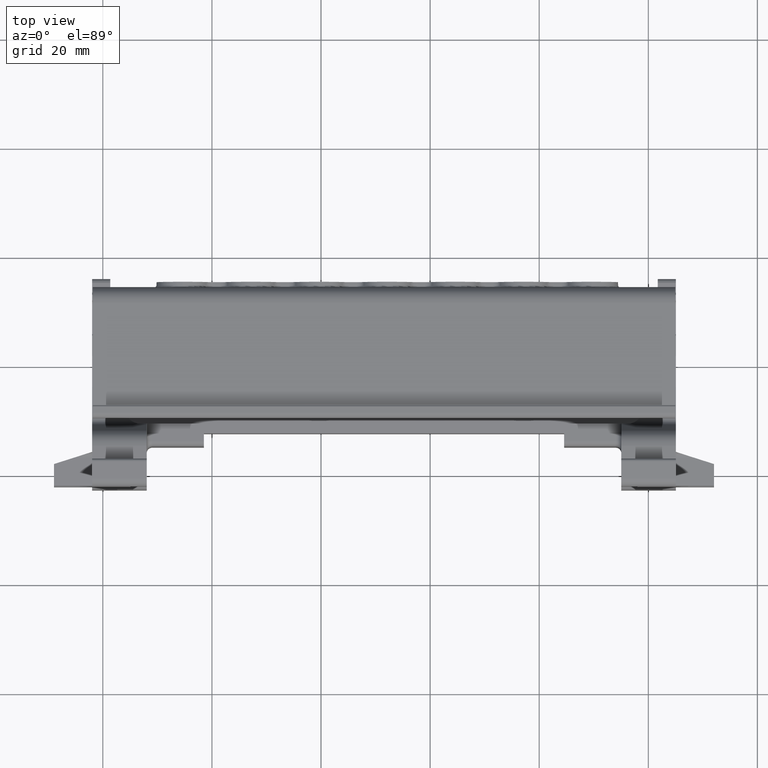
[diagram: clean part render]
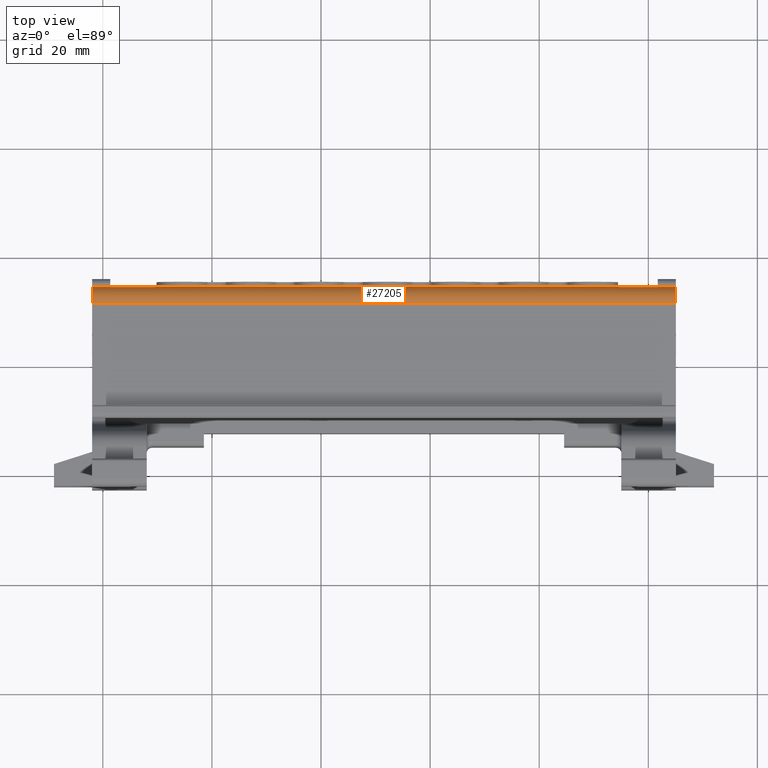
[diagram: same view with one face highlighted and labeled with its STEP entity id]
A machine part, top view. The second image highlights one B-rep face of the part: STEP entity #27205.
In plain terms, the highlighted cylindrical surface (edge-blend (fillet) strip) has radius 3 mm, axis along (-1, 0, 0).
Its self-contained STEP definition (entity closure, byte-faithful):
#959 = ORIENTED_EDGE ( 'NONE', *, *, #18409, .T. ) ;
#982 = ORIENTED_EDGE ( 'NONE', *, *, #18387, .F. ) ;
#1034 = ORIENTED_EDGE ( 'NONE', *, *, #18591, .F. ) ;
#1067 = ORIENTED_EDGE ( 'NONE', *, *, #18441, .T. ) ;
#5176 = EDGE_LOOP ( 'NONE', ( #959, #1034, #982, #1067 ) ) ;
#9896 = LINE ( 'NONE', #9957, #16477 ) ;
#9939 = DIRECTION ( 'NONE',  ( -1.000000000000000000, 7.897574933817846300E-015, 3.853197191115062900E-015 ) ) ;
#9957 = CARTESIAN_POINT ( 'NONE',  ( 44.14730230417468700, 71.26518187041283200, 47.07379214778583100 ) ) ;
#11004 = AXIS2_PLACEMENT_3D ( 'NONE', #26611, #26613, #26589 ) ;
#13488 = VERTEX_POINT ( 'NONE', #21353 ) ;
#13585 = VERTEX_POINT ( 'NONE', #21446 ) ;
#13614 = VERTEX_POINT ( 'NONE', #21437 ) ;
#13689 = VERTEX_POINT ( 'NONE', #21492 ) ;
#16294 = CIRCLE ( 'NONE', #16304, 3.000000000000002700 ) ;
#16304 = AXIS2_PLACEMENT_3D ( 'NONE', #17384, #17364, #17405 ) ;
#16306 = AXIS2_PLACEMENT_3D ( 'NONE', #17460, #17481, #17476 ) ;
#16326 = CIRCLE ( 'NONE', #16306, 3.000000000000002700 ) ;
#16379 = VECTOR ( 'NONE', #16527, 1000.000000000000000 ) ;
#16477 = VECTOR ( 'NONE', #9939, 1000.000000000000000 ) ;
#16518 = LINE ( 'NONE', #16581, #16379 ) ;
#16527 = DIRECTION ( 'NONE',  ( -1.000000000000000000, 7.897574933817846300E-015, 3.853197191115062900E-015 ) ) ;
#16581 = CARTESIAN_POINT ( 'NONE',  ( 44.14730230417473700, 74.21282648293228600, 44.07424903034258500 ) ) ;
#17364 = DIRECTION ( 'NONE',  ( 1.000000000000000000, -7.931712594434357500E-015, -3.864784591637045400E-015 ) ) ;
#17384 = CARTESIAN_POINT ( 'NONE',  ( 44.94730230417467000, 71.21282648293228600, 44.07424903034253600 ) ) ;
#17405 = DIRECTION ( 'NONE',  ( 6.938893903907222100E-015, 1.000000000000000000, 0.0000000000000000000 ) ) ;
#17460 = CARTESIAN_POINT ( 'NONE',  ( -61.85269769582527000, 71.21282648293311000, 44.07424903034294800 ) ) ;
#17476 = DIRECTION ( 'NONE',  ( 6.938893903907222100E-015, 1.000000000000000000, 0.0000000000000000000 ) ) ;
#17481 = DIRECTION ( 'NONE',  ( 1.000000000000000000, -7.931712594434357500E-015, -3.864784591637045400E-015 ) ) ;
#18387 = EDGE_CURVE ( 'NONE', #13585, #13614, #16294, .T. ) ;
#18409 = EDGE_CURVE ( 'NONE', #13488, #13689, #16326, .T. ) ;
#18441 = EDGE_CURVE ( 'NONE', #13585, #13488, #16518, .T. ) ;
#18591 = EDGE_CURVE ( 'NONE', #13614, #13689, #9896, .T. ) ;
#21353 = CARTESIAN_POINT ( 'NONE',  ( -61.85269769582523500, 74.21282648293312400, 44.07424903034299700 ) ) ;
#21437 = CARTESIAN_POINT ( 'NONE',  ( 44.94730230417468400, 71.26518187041283200, 47.07379214778583100 ) ) ;
#21446 = CARTESIAN_POINT ( 'NONE',  ( 44.94730230417469800, 74.21282648293228600, 44.07424903034258500 ) ) ;
#21492 = CARTESIAN_POINT ( 'NONE',  ( -61.85269769582525600, 71.26518187041367000, 47.07379214778623600 ) ) ;
#26575 = FACE_OUTER_BOUND ( 'NONE', #5176, .T. ) ;
#26589 = DIRECTION ( 'NONE',  ( 4.625929269271485300E-015, -6.107034461466653900E-007, 0.9999999999998134800 ) ) ;
#26611 = CARTESIAN_POINT ( 'NONE',  ( 44.14730230417468700, 71.21282648293228600, 44.07424903034253600 ) ) ;
#26612 = CYLINDRICAL_SURFACE ( 'NONE', #11004, 3.000000000000000000 ) ;
#26613 = DIRECTION ( 'NONE',  ( -1.000000000000000000, 7.897574933817846300E-015, 3.853197191115062900E-015 ) ) ;
#27205 = ADVANCED_FACE ( 'NONE', ( #26575 ), #26612, .T. ) ;